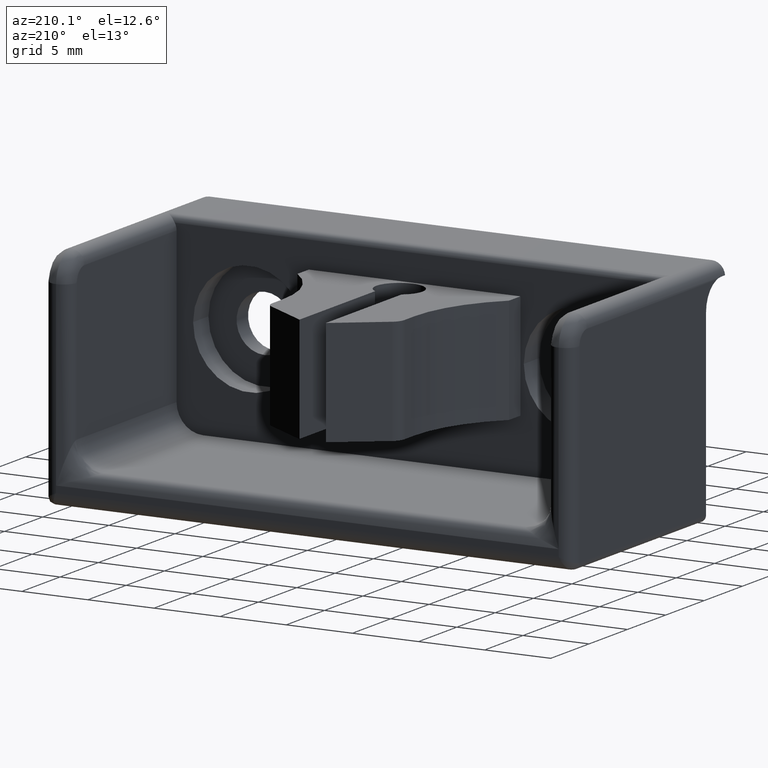
[diagram: clean part render]
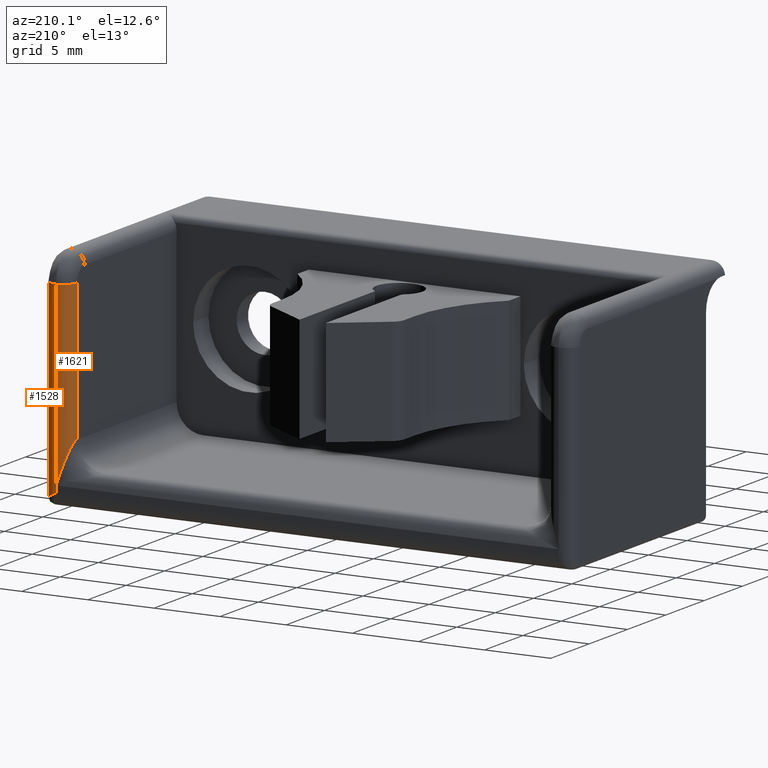
[diagram: same view with one multi-face feature highlighted, each face labeled with its STEP entity id]
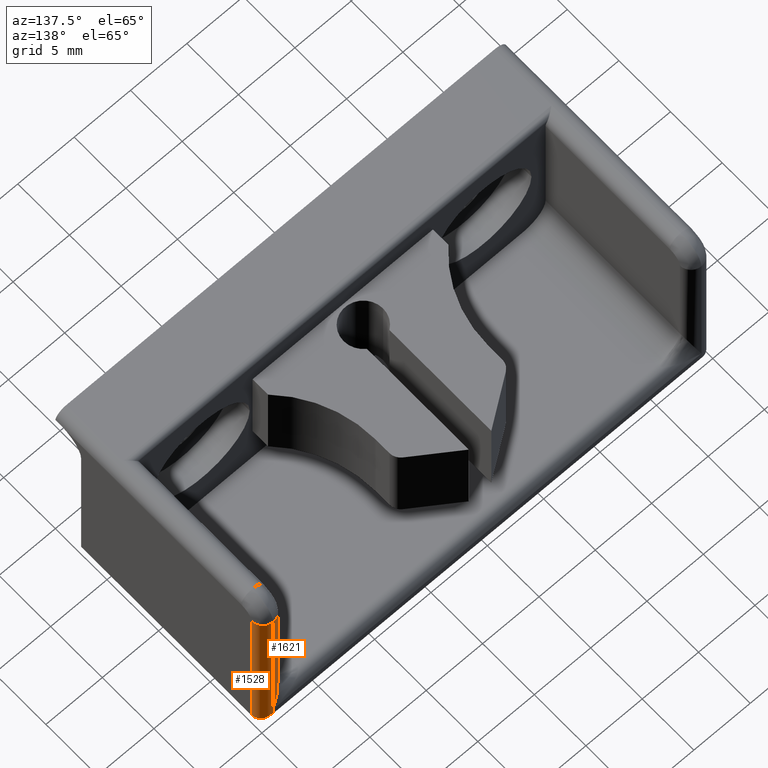
[diagram: same view with one multi-face feature highlighted, each face labeled with its STEP entity id]
A machine part, auxiliary view. The highlighted faces form ONE feature: a constant-radius fillet chain: 2 tangent blend faces with common blend radius 1 mm. The faces share edges in the B-rep.
A second angle (auxiliary view) of the same feature is appended — it is thin or edge-on in the first view.
Their STEP definitions:
[1] entity #1528 (Cylinder):
#696=CARTESIAN_POINT('',(19.000000000000004,9.999999999999995,1.500000000000001));
#697=VERTEX_POINT('',#696);
#704=CARTESIAN_POINT('',(19.000000000000004,9.999999999999995,1.000000000000001));
#705=VERTEX_POINT('',#704);
#706=CARTESIAN_POINT('',(19.000000000000007,9.999999999999995,1.500000000000002));
#707=DIRECTION('',(0.0,0.0,-1.0));
#708=VECTOR('',#707,0.500000000000001);
#709=LINE('',#706,#708);
#710=EDGE_CURVE('',#697,#705,#709,.T.);
#817=CARTESIAN_POINT('',(20.000000000000007,8.999999999999996,0.500000000000001));
#818=VERTEX_POINT('',#817);
#825=CARTESIAN_POINT('',(20.000000000000007,8.999999999999995,15.000000000000005));
#826=VERTEX_POINT('',#825);
#827=CARTESIAN_POINT('',(20.000000000000007,8.999999999999996,0.500000000000000));
#828=DIRECTION('',(0.0,0.0,1.0));
#829=VECTOR('',#828,14.500000000000005);
#830=LINE('',#827,#829);
#831=EDGE_CURVE('',#818,#826,#830,.T.);
#1443=CARTESIAN_POINT('',(19.000000000000007,9.999999999999995,15.000000000000005));
#1444=VERTEX_POINT('',#1443);
#1445=CARTESIAN_POINT('',(19.000000000000007,8.999999999999995,15.000000000000005));
#1446=DIRECTION('',(0.0,0.0,-1.0));
#1447=DIRECTION('',(-1.0,0.0,0.0));
#1448=AXIS2_PLACEMENT_3D('',#1445,#1446,#1447);
#1449=CIRCLE('',#1448,1.000000000000001);
#1450=EDGE_CURVE('',#1444,#826,#1449,.T.);
#1498=CARTESIAN_POINT('',(19.000000000000007,8.999999999999995,15.000000010000004));
#1499=DIRECTION('',(0.0,0.0,-1.0));
#1500=DIRECTION('',(-1.0,0.0,0.0));
#1501=AXIS2_PLACEMENT_3D('',#1498,#1499,#1500);
#1502=CYLINDRICAL_SURFACE('',#1501,1.000000000000001);
#1503=ORIENTED_EDGE('',*,*,#831,.F.);
#1504=CARTESIAN_POINT('',(20.000000000000007,8.999999999999996,0.500000000000001));
#1505=CARTESIAN_POINT('',(20.0,9.585786437626897,0.500000000000002));
#1506=CARTESIAN_POINT('',(19.585786437626908,9.999999999999991,0.707106781186549));
#1507=CARTESIAN_POINT('',(19.000000000000007,9.999999999999995,1.000000000000001));
#1515=(BOUNDED_CURVE()B_SPLINE_CURVE(3,(#1504,#1505,#1506,#1507),.UNSPECIFIED.,.F.,.U.)B_SPLINE_CURVE_WITH_KNOTS((4,4),(3.141592653589795,4.712388980384691),.UNSPECIFIED.)CURVE()GEOMETRIC_REPRESENTATION_ITEM()RATIONAL_B_SPLINE_CURVE((1.0,0.804737854124366,0.804737854124366,1.0))REPRESENTATION_ITEM(''));
#1516=EDGE_CURVE('',#818,#705,#1515,.T.);
#1517=ORIENTED_EDGE('',*,*,#1516,.T.);
#1518=ORIENTED_EDGE('',*,*,#710,.F.);
#1519=CARTESIAN_POINT('',(19.000000000000007,9.999999999999995,15.000000000000005));
#1520=DIRECTION('',(0.0,0.0,-1.0));
#1521=VECTOR('',#1520,13.500000000000004);
#1522=LINE('',#1519,#1521);
#1523=EDGE_CURVE('',#1444,#697,#1522,.T.);
#1524=ORIENTED_EDGE('',*,*,#1523,.F.);
#1525=ORIENTED_EDGE('',*,*,#1450,.T.);
#1526=EDGE_LOOP('',(#1503,#1517,#1518,#1524,#1525));
#1527=FACE_OUTER_BOUND('',#1526,.T.);
#1528=ADVANCED_FACE('',(#1527),#1502,.T.);
[2] entity #1621 (Cylinder):
#696=CARTESIAN_POINT('',(19.000000000000004,9.999999999999995,1.500000000000001));
#697=VERTEX_POINT('',#696);
#929=CARTESIAN_POINT('',(18.000000000000007,8.999999999999995,15.000000000000005));
#930=VERTEX_POINT('',#929);
#931=CARTESIAN_POINT('',(18.000000000000007,8.999999999999995,4.500000000000002));
#932=VERTEX_POINT('',#931);
#933=CARTESIAN_POINT('',(18.000000000000007,8.999999999999995,15.000000000000004));
#934=DIRECTION('',(0.0,0.0,-1.0));
#935=VECTOR('',#934,10.500000000000002);
#936=LINE('',#933,#935);
#937=EDGE_CURVE('',#930,#932,#936,.T.);
#1443=CARTESIAN_POINT('',(19.000000000000007,9.999999999999995,15.000000000000005));
#1444=VERTEX_POINT('',#1443);
#1519=CARTESIAN_POINT('',(19.000000000000007,9.999999999999995,15.000000000000005));
#1520=DIRECTION('',(0.0,0.0,-1.0));
#1521=VECTOR('',#1520,13.500000000000004);
#1522=LINE('',#1519,#1521);
#1523=EDGE_CURVE('',#1444,#697,#1522,.T.);
#1548=CARTESIAN_POINT('',(19.000000000000007,8.999999999999995,15.000000000000005));
#1549=DIRECTION('',(0.0,0.0,-1.0));
#1550=DIRECTION('',(-1.0,0.0,0.0));
#1551=AXIS2_PLACEMENT_3D('',#1548,#1549,#1550);
#1552=CIRCLE('',#1551,1.000000000000001);
#1553=EDGE_CURVE('',#930,#1444,#1552,.T.);
#1597=CARTESIAN_POINT('',(19.000000000000007,8.999999999999995,1.499999990000001));
#1598=DIRECTION('',(0.0,0.0,1.0));
#1599=DIRECTION('',(1.0,0.0,0.0));
#1600=AXIS2_PLACEMENT_3D('',#1597,#1598,#1599);
#1601=CYLINDRICAL_SURFACE('',#1600,1.000000000000001);
#1602=ORIENTED_EDGE('',*,*,#1523,.T.);
#1603=CARTESIAN_POINT('',(19.000000000000007,9.999999999999995,1.500000000000001));
#1604=CARTESIAN_POINT('',(18.414213562373092,9.999999999999995,3.257359312880716));
#1605=CARTESIAN_POINT('',(18.000000000000007,9.585786437626897,4.500000000000002));
#1606=CARTESIAN_POINT('',(18.000000000000007,8.999999999999995,4.500000000000002));
#1614=(BOUNDED_CURVE()B_SPLINE_CURVE(3,(#1603,#1604,#1605,#1606),.UNSPECIFIED.,.F.,.U.)B_SPLINE_CURVE_WITH_KNOTS((4,4),(1.570796326794897,3.141592653589793),.UNSPECIFIED.)CURVE()GEOMETRIC_REPRESENTATION_ITEM()RATIONAL_B_SPLINE_CURVE((1.0,0.804737854124365,0.804737854124365,1.0))REPRESENTATION_ITEM(''));
#1615=EDGE_CURVE('',#697,#932,#1614,.T.);
#1616=ORIENTED_EDGE('',*,*,#1615,.T.);
#1617=ORIENTED_EDGE('',*,*,#937,.F.);
#1618=ORIENTED_EDGE('',*,*,#1553,.T.);
#1619=EDGE_LOOP('',(#1602,#1616,#1617,#1618));
#1620=FACE_OUTER_BOUND('',#1619,.T.);
#1621=ADVANCED_FACE('',(#1620),#1601,.T.);